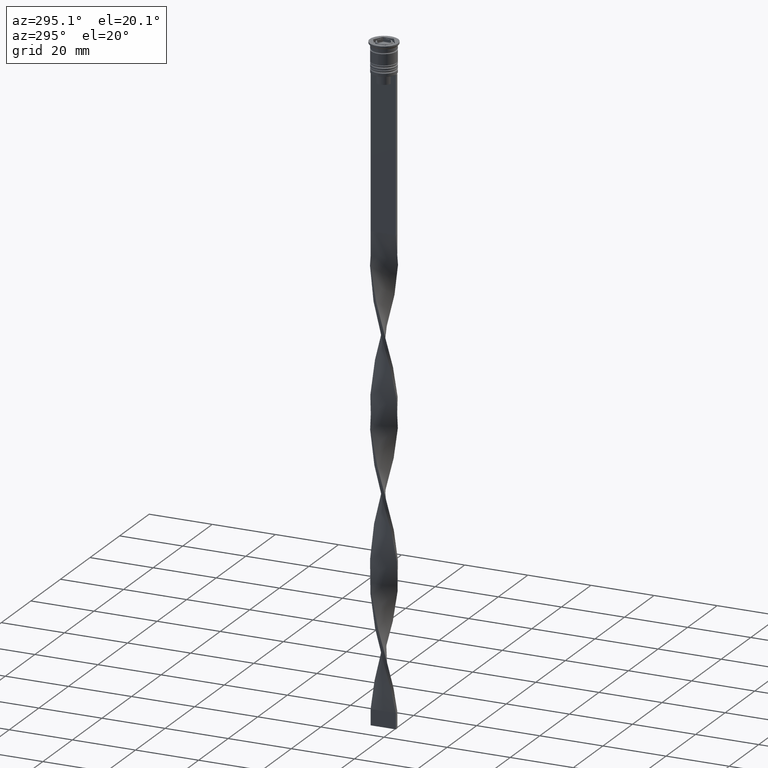
[diagram: clean part render]
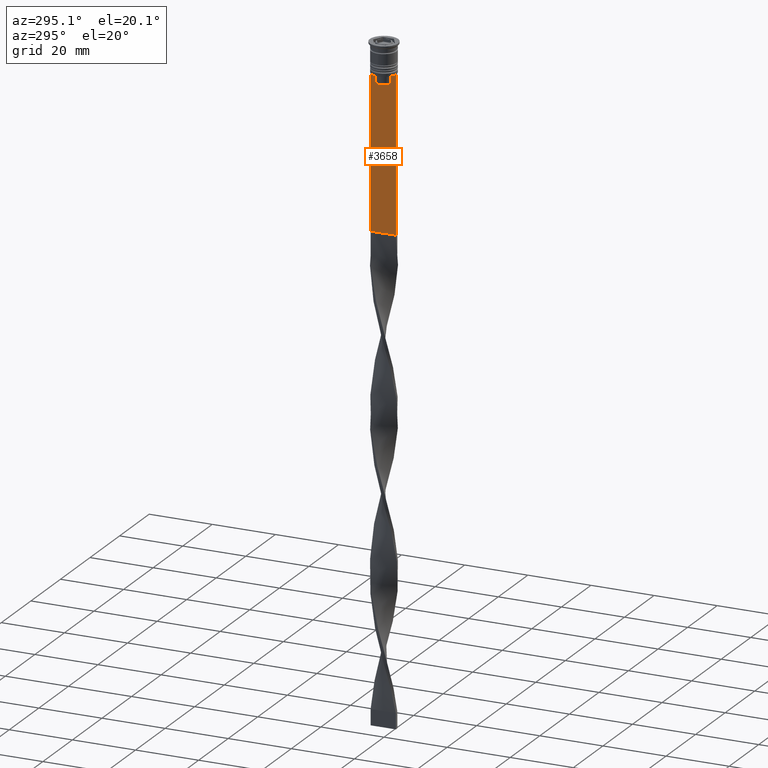
[diagram: same view with one face highlighted and labeled with its STEP entity id]
A machine part, auxiliary view. The second image highlights one B-rep face of the part: STEP entity #3658.
In plain terms, the highlighted planar face has unit normal (-1, 0, 0).
Its self-contained STEP definition (entity closure, byte-faithful):
#9 = CARTESIAN_POINT ( 'NONE',  ( -0.5000000000000000000, 2.347338918861097135, 0.000000000000000000 ) ) ;
#26 = ORIENTED_EDGE ( 'NONE', *, *, #2614, .F. ) ;
#63 = ORIENTED_EDGE ( 'NONE', *, *, #911, .F. ) ;
#64 = DIRECTION ( 'NONE',  ( 0.000000000000000000, -1.000000000000000000, 0.000000000000000000 ) ) ;
#76 = CARTESIAN_POINT ( 'NONE',  ( -0.5000000000000000000, -2.347338918861097135, -10.00000000000000000 ) ) ;
#108 = CARTESIAN_POINT ( 'NONE',  ( -0.5000000000000000000, 2.347338918861097135, -10.00000000000000000 ) ) ;
#143 = DIRECTION ( 'NONE',  ( 0.000000000000000000, 0.000000000000000000, 1.000000000000000000 ) ) ;
#212 = CARTESIAN_POINT ( 'NONE',  ( -0.5000000000000000000, 4.000000000000000000, -1.437742251701450202 ) ) ;
#242 = ORIENTED_EDGE ( 'NONE', *, *, #2764, .F. ) ;
#247 = LINE ( 'NONE', #1113, #3715 ) ;
#264 = DIRECTION ( 'NONE',  ( 0.000000000000000000, -1.000000000000000000, 0.000000000000000000 ) ) ;
#364 = LINE ( 'NONE', #1591, #2915 ) ;
#406 = VECTOR ( 'NONE', #964, 1000.000000000000000 ) ;
#437 = PLANE ( 'NONE',  #805 ) ;
#503 = VERTEX_POINT ( 'NONE', #562 ) ;
#562 = CARTESIAN_POINT ( 'NONE',  ( -0.5000000000000000000, -4.000000000000000000, -9.500000000000000000 ) ) ;
#597 = CARTESIAN_POINT ( 'NONE',  ( -0.5000000000000000000, 2.517407211010871393, -9.833663366238582171 ) ) ;
#600 = LINE ( 'NONE', #2771, #2261 ) ;
#620 = DIRECTION ( 'NONE',  ( -0.000000000000000000, -0.000000000000000000, 1.000000000000000000 ) ) ;
#624 = EDGE_CURVE ( 'NONE', #1646, #2842, #600, .T. ) ;
#640 = DIRECTION ( 'NONE',  ( 0.000000000000000000, -1.000000000000000000, 0.000000000000000000 ) ) ;
#688 = CARTESIAN_POINT ( 'NONE',  ( -0.5000000000000000000, -2.347338918861097135, -10.00000000000000000 ) ) ;
#720 = EDGE_CURVE ( 'NONE', #3806, #1646, #2203, .T. ) ;
#721 = CARTESIAN_POINT ( 'NONE',  ( -0.5000000000000000000, -4.000000000000000000, -9.500000000000000000 ) ) ;
#750 = EDGE_CURVE ( 'NONE', #2869, #2999, #3378, .T. ) ;
#766 = CARTESIAN_POINT ( 'NONE',  ( -0.5000000000000000000, 4.000000000000000000, -9.500000000000000000 ) ) ;
#775 = VERTEX_POINT ( 'NONE', #1886 ) ;
#805 = AXIS2_PLACEMENT_3D ( 'NONE', #3163, #3188, #143 ) ;
#838 = CARTESIAN_POINT ( 'NONE',  ( -0.5000000000000000000, 2.347338918861097135, -12.50000000000000000 ) ) ;
#855 = VECTOR ( 'NONE', #3390, 1000.000000000000000 ) ;
#894 = ORIENTED_EDGE ( 'NONE', *, *, #1023, .F. ) ;
#903 = DIRECTION ( 'NONE',  ( 0.000000000000000000, 1.000000000000000000, 0.000000000000000000 ) ) ;
#911 = EDGE_CURVE ( 'NONE', #2999, #2819, #1639, .T. ) ;
#912 = DIRECTION ( 'NONE',  ( 0.000000000000000000, 0.000000000000000000, -1.000000000000000000 ) ) ;
#920 = CARTESIAN_POINT ( 'NONE',  ( -0.5000000000000000000, 2.347338918861097135, -10.00000000000000000 ) ) ;
#948 = EDGE_CURVE ( 'NONE', #2842, #503, #1292, .T. ) ;
#964 = DIRECTION ( 'NONE',  ( 0.000000000000000000, -1.000000000000000000, 0.000000000000000000 ) ) ;
#980 = EDGE_CURVE ( 'NONE', #2254, #2869, #2553, .T. ) ;
#1023 = EDGE_CURVE ( 'NONE', #2515, #3829, #364, .T. ) ;
#1068 = VECTOR ( 'NONE', #620, 1000.000000000000000 ) ;
#1113 = CARTESIAN_POINT ( 'NONE',  ( -0.5000000000000000000, -4.000000000000000000, -1.437742251701450202 ) ) ;
#1126 = VECTOR ( 'NONE', #912, 1000.000000000000000 ) ;
#1198 = VECTOR ( 'NONE', #1232, 1000.000000000000000 ) ;
#1214 = LINE ( 'NONE', #1506, #2793 ) ;
#1232 = DIRECTION ( 'NONE',  ( 0.000000000000000000, 0.000000000000000000, -1.000000000000000000 ) ) ;
#1241 = CARTESIAN_POINT ( 'NONE',  ( -0.5000000000000000000, -2.347338918861097135, -12.50000000000000000 ) ) ;
#1252 = CARTESIAN_POINT ( 'NONE',  ( -0.5000000000000000000, -4.000000000000000000, -9.500000000000000000 ) ) ;
#1292 = LINE ( 'NONE', #1252, #406 ) ;
#1449 = CARTESIAN_POINT ( 'NONE',  ( -0.5000000000000000000, 2.687094542495897631, -9.666938847453439010 ) ) ;
#1484 = CARTESIAN_POINT ( 'NONE',  ( -0.5000000000000000000, -2.856571371417138572, -9.500000000000000000 ) ) ;
#1506 = CARTESIAN_POINT ( 'NONE',  ( -0.5000000000000000000, -4.000000000000000000, -58.50000000000000000 ) ) ;
#1552 = EDGE_CURVE ( 'NONE', #503, #3395, #247, .T. ) ;
#1591 = CARTESIAN_POINT ( 'NONE',  ( -0.5000000000000000000, 2.399999999999996803, -12.50000000000000000 ) ) ;
#1614 = CARTESIAN_POINT ( 'NONE',  ( -0.5000000000000000000, 3.867815921162741422, -9.500000000000000000 ) ) ;
#1639 = B_SPLINE_CURVE_WITH_KNOTS ( 'NONE', 3,
 ( #3641, #1449, #597, #920 ),
 .UNSPECIFIED., .F., .F.,
 ( 4, 4 ),
 ( 0.004956812174141195064, 0.005670477137898153989 ),
 .UNSPECIFIED. ) ;
#1646 = VERTEX_POINT ( 'NONE', #1484 ) ;
#1656 = CARTESIAN_POINT ( 'NONE',  ( -0.5000000000000000000, -3.867815921162741422, -9.500000000000000000 ) ) ;
#1713 = DIRECTION ( 'NONE',  ( 0.000000000000000000, 0.000000000000000000, -1.000000000000000000 ) ) ;
#1865 = EDGE_CURVE ( 'NONE', #2254, #775, #2129, .T. ) ;
#1877 = ORIENTED_EDGE ( 'NONE', *, *, #624, .F. ) ;
#1886 = CARTESIAN_POINT ( 'NONE',  ( -0.5000000000000000000, 4.000000000000000000, -58.50000000000000000 ) ) ;
#1909 = CARTESIAN_POINT ( 'NONE',  ( -0.5000000000000000000, -2.687095498514037839, -9.666937905752043037 ) ) ;
#1919 = ORIENTED_EDGE ( 'NONE', *, *, #720, .F. ) ;
#1949 = CARTESIAN_POINT ( 'NONE',  ( -0.5000000000000000000, -2.856571371417138572, -9.500000000000000000 ) ) ;
#2029 = ORIENTED_EDGE ( 'NONE', *, *, #2059, .F. ) ;
#2049 = CARTESIAN_POINT ( 'NONE',  ( -0.5000000000000000000, 2.856571371417138572, -9.500000000000000000 ) ) ;
#2059 = EDGE_CURVE ( 'NONE', #2819, #2515, #2516, .T. ) ;
#2129 = LINE ( 'NONE', #212, #1126 ) ;
#2143 = CARTESIAN_POINT ( 'NONE',  ( -0.5000000000000000000, -2.347338918861097135, 0.000000000000000000 ) ) ;
#2154 = CARTESIAN_POINT ( 'NONE',  ( -0.5000000000000000000, -4.000000000000000000, -58.50000000000000000 ) ) ;
#2182 = CARTESIAN_POINT ( 'NONE',  ( -0.5000000000000000000, -4.000000000000000000, -9.500000000000000000 ) ) ;
#2197 = VECTOR ( 'NONE', #640, 1000.000000000000000 ) ;
#2203 = B_SPLINE_CURVE_WITH_KNOTS ( 'NONE', 3,
 ( #688, #2535, #1909, #1949 ),
 .UNSPECIFIED., .F., .F.,
 ( 4, 4 ),
 ( 0.01178336557230038641, 0.01249758354768160454 ),
 .UNSPECIFIED. ) ;
#2210 = ORIENTED_EDGE ( 'NONE', *, *, #1552, .F. ) ;
#2254 = VERTEX_POINT ( 'NONE', #766 ) ;
#2261 = VECTOR ( 'NONE', #264, 1000.000000000000000 ) ;
#2289 = ORIENTED_EDGE ( 'NONE', *, *, #750, .F. ) ;
#2515 = VERTEX_POINT ( 'NONE', #838 ) ;
#2516 = LINE ( 'NONE', #9, #1198 ) ;
#2535 = CARTESIAN_POINT ( 'NONE',  ( -0.5000000000000000000, -2.517408374291112416, -9.833662228483172285 ) ) ;
#2545 = ORIENTED_EDGE ( 'NONE', *, *, #948, .F. ) ;
#2553 = LINE ( 'NONE', #721, #855 ) ;
#2614 = EDGE_CURVE ( 'NONE', #3395, #775, #1214, .T. ) ;
#2764 = EDGE_CURVE ( 'NONE', #3829, #3806, #3642, .T. ) ;
#2771 = CARTESIAN_POINT ( 'NONE',  ( -0.5000000000000000000, -4.000000000000000000, -9.500000000000000000 ) ) ;
#2793 = VECTOR ( 'NONE', #903, 1000.000000000000000 ) ;
#2819 = VERTEX_POINT ( 'NONE', #108 ) ;
#2842 = VERTEX_POINT ( 'NONE', #1656 ) ;
#2869 = VERTEX_POINT ( 'NONE', #1614 ) ;
#2891 = FACE_OUTER_BOUND ( 'NONE', #2944, .T. ) ;
#2915 = VECTOR ( 'NONE', #64, 1000.000000000000000 ) ;
#2944 = EDGE_LOOP ( 'NONE', ( #63, #2289, #3514, #3443, #26, #2210, #2545, #1877, #1919, #242, #894, #2029 ) ) ;
#2999 = VERTEX_POINT ( 'NONE', #2049 ) ;
#3163 = CARTESIAN_POINT ( 'NONE',  ( -0.5000000000000000000, -4.000000000000000000, -1.437742251701450202 ) ) ;
#3188 = DIRECTION ( 'NONE',  ( -1.000000000000000000, 0.000000000000000000, 0.000000000000000000 ) ) ;
#3378 = LINE ( 'NONE', #2182, #2197 ) ;
#3390 = DIRECTION ( 'NONE',  ( 0.000000000000000000, -1.000000000000000000, 0.000000000000000000 ) ) ;
#3395 = VERTEX_POINT ( 'NONE', #2154 ) ;
#3443 = ORIENTED_EDGE ( 'NONE', *, *, #1865, .T. ) ;
#3514 = ORIENTED_EDGE ( 'NONE', *, *, #980, .F. ) ;
#3641 = CARTESIAN_POINT ( 'NONE',  ( -0.5000000000000000000, 2.856571371417138572, -9.500000000000000000 ) ) ;
#3642 = LINE ( 'NONE', #2143, #1068 ) ;
#3658 = ADVANCED_FACE ( 'NONE', ( #2891 ), #437, .T. ) ;
#3715 = VECTOR ( 'NONE', #1713, 1000.000000000000000 ) ;
#3806 = VERTEX_POINT ( 'NONE', #76 ) ;
#3829 = VERTEX_POINT ( 'NONE', #1241 ) ;